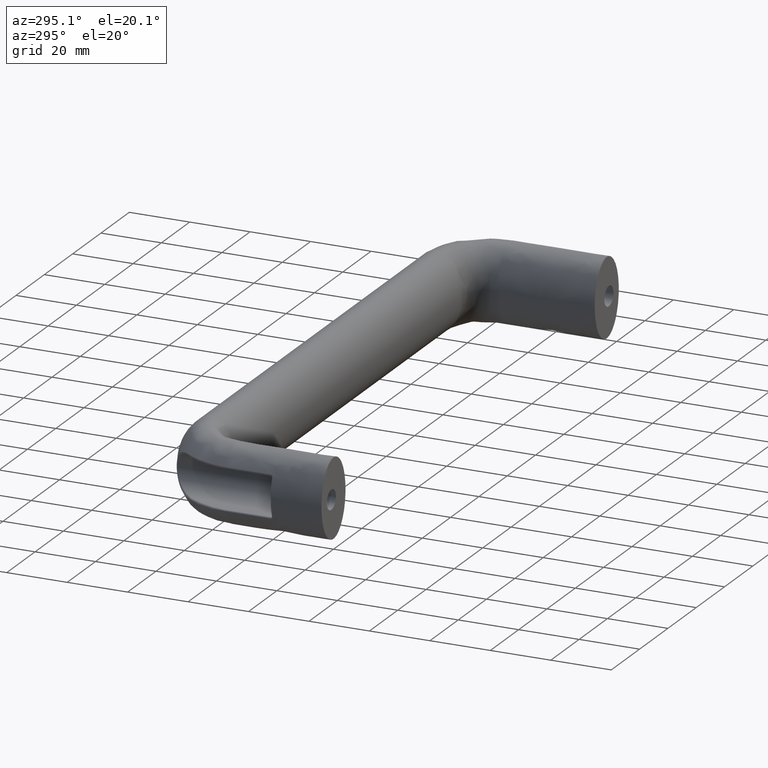
[diagram: clean part render]
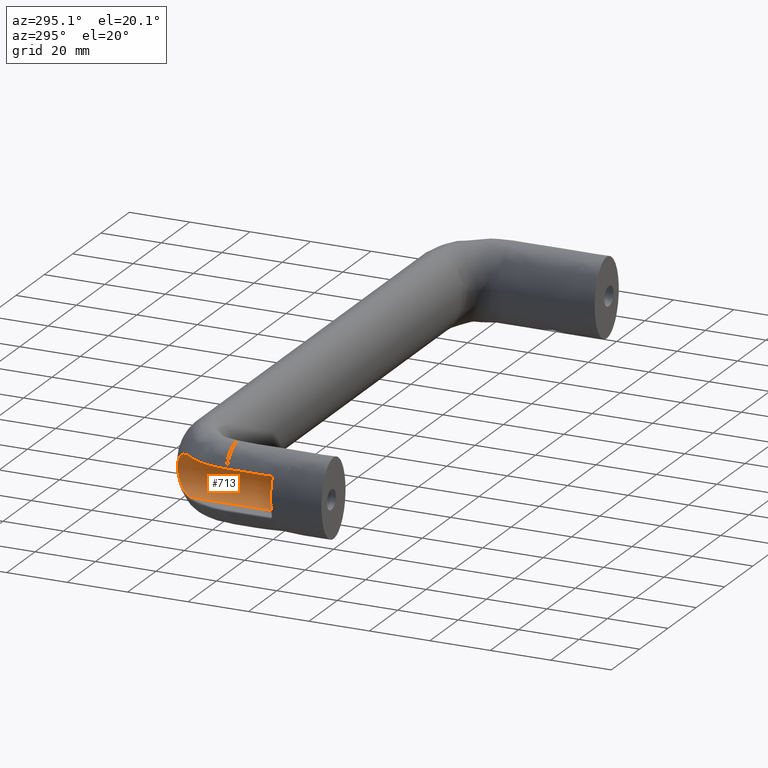
[diagram: same view with one face highlighted and labeled with its STEP entity id]
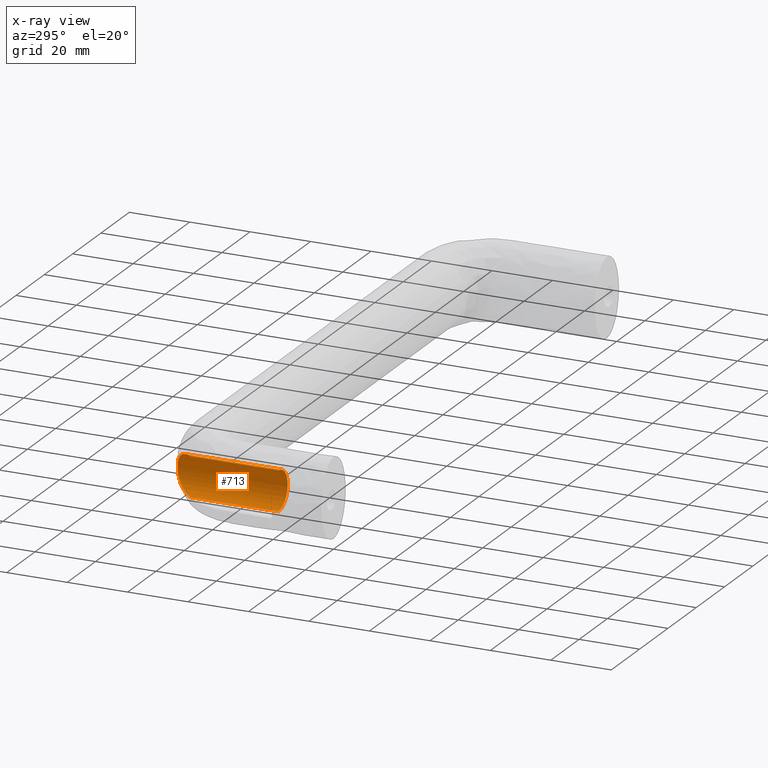
[diagram: x-ray of the same camera — body ghosted, the highlighted face saturated]
A machine part, auxiliary view. The second image highlights one B-rep face of the part: STEP entity #713.
The next image is the same camera in x-ray: the body ghosted, the highlighted face saturated — about 0% of this face is hidden behind the body in this view.
In plain terms, the highlighted cylindrical surface (edge-blend (fillet) strip) has radius 6.5 mm, axis along (0, -1, 0).
Its self-contained STEP definition (entity closure, byte-faithful):
#51=CYLINDRICAL_SURFACE('',#799,6.5);
#71=LINE('',#1853,#93);
#72=LINE('',#1854,#94);
#93=VECTOR('',#985,29.0082159809616);
#94=VECTOR('',#986,29.0082159809616);
#150=CIRCLE('',#792,6.5);
#206=FACE_OUTER_BOUND('',#270,.T.);
#270=EDGE_LOOP('',(#639,#640,#641,#642));
#296=B_SPLINE_CURVE_WITH_KNOTS('',3,(#1725,#1726,#1727,#1728,#1729,#1730,
#1731,#1732,#1733,#1734,#1735,#1736),.UNSPECIFIED.,.F.,.F.,(4,1,1,1,1,1,
1,1,1,4),(1.97568226080099E-11,0.391019060009876,0.782038119999995,0.977547649995054,
1.17305717999011,1.36856670998517,1.56407623998023,1.95509529997035,2.34611435996047,
2.73713341995059),.UNSPECIFIED.);
#362=VERTEX_POINT('',#1625);
#364=VERTEX_POINT('',#1710);
#368=VERTEX_POINT('',#1784);
#369=VERTEX_POINT('',#1788);
#450=EDGE_CURVE('',#362,#364,#296,.T.);
#459=EDGE_CURVE('',#369,#368,#150,.T.);
#466=EDGE_CURVE('',#362,#368,#71,.T.);
#467=EDGE_CURVE('',#364,#369,#72,.T.);
#639=ORIENTED_EDGE('',*,*,#450,.F.);
#640=ORIENTED_EDGE('',*,*,#466,.T.);
#641=ORIENTED_EDGE('',*,*,#459,.F.);
#642=ORIENTED_EDGE('',*,*,#467,.F.);
#713=ADVANCED_FACE('',(#206),#51,.F.);
#792=AXIS2_PLACEMENT_3D('',#1790,#968,#969);
#799=AXIS2_PLACEMENT_3D('',#1852,#983,#984);
#968=DIRECTION('center_axis',(0.,1.,0.));
#969=DIRECTION('ref_axis',(1.,0.,6.12323399573677E-17));
#983=DIRECTION('center_axis',(0.,-1.,0.));
#984=DIRECTION('ref_axis',(0.,0.,1.));
#985=DIRECTION('',(0.,-1.,0.));
#986=DIRECTION('',(0.,-1.,0.));
#1625=CARTESIAN_POINT('',(-1.50000000008955,46.5082159809616,-6.49999999999999));
#1710=CARTESIAN_POINT('',(-1.50000000008316,46.5082159809616,6.50000000000001));
#1725=CARTESIAN_POINT('Ctrl Pts',(-1.50000000015189,46.5082159809809,-6.49999999999999));
#1726=CARTESIAN_POINT('Ctrl Pts',(-0.740484069630458,47.5230150583374,-6.50000000001773));
#1727=CARTESIAN_POINT('Ctrl Pts',(0.845357270549544,49.4931260720111,-6.23737738787712));
#1728=CARTESIAN_POINT('Ctrl Pts',(2.82405373669811,51.6821555192111,-5.03274739256));
#1729=CARTESIAN_POINT('Ctrl Pts',(4.12803367749433,53.0290329212478,-3.38895215627259));
#1730=CARTESIAN_POINT('Ctrl Pts',(4.82559283875281,53.7226126368366,-1.81320414118463));
#1731=CARTESIAN_POINT('Ctrl Pts',(5.08755213973397,53.9765750696474,-0.00306519284926109));
#1732=CARTESIAN_POINT('Ctrl Pts',(4.73882901828299,53.6385129430345,2.42601529248889));
#1733=CARTESIAN_POINT('Ctrl Pts',(3.21510632148922,52.1166628858081,4.80533482700031));
#1734=CARTESIAN_POINT('Ctrl Pts',(0.849031387690694,49.4959856652581,6.23084013959578));
#1735=CARTESIAN_POINT('Ctrl Pts',(-0.740484069645105,47.5230150583187,6.50000000001944));
#1736=CARTESIAN_POINT('Ctrl Pts',(-1.5000000001663,46.5082159809616,6.50000000000001));
#1784=CARTESIAN_POINT('',(-1.50000000000001,17.5,-6.49999999999999));
#1788=CARTESIAN_POINT('',(-1.50000000000001,17.5,6.50000000000001));
#1790=CARTESIAN_POINT('Origin',(-1.50000000000001,17.5,9.95025524307224E-15));
#1852=CARTESIAN_POINT('Origin',(-1.50000000000001,57.,9.95025524307224E-15));
#1853=CARTESIAN_POINT('',(-1.50000000000001,57.,-6.49999999999999));
#1854=CARTESIAN_POINT('',(-1.50000000000001,57.,6.50000000000001));